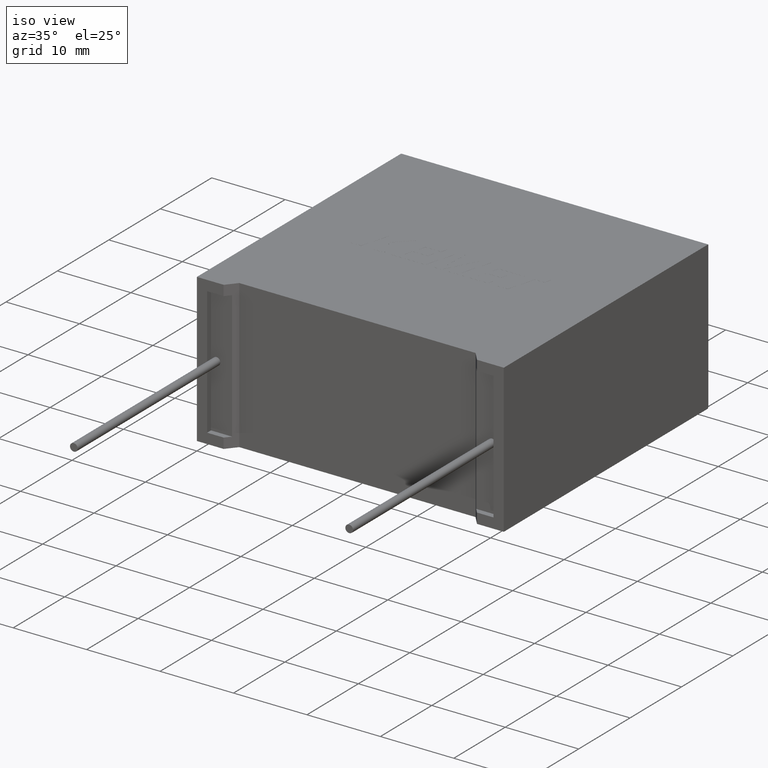
[diagram: clean part render]
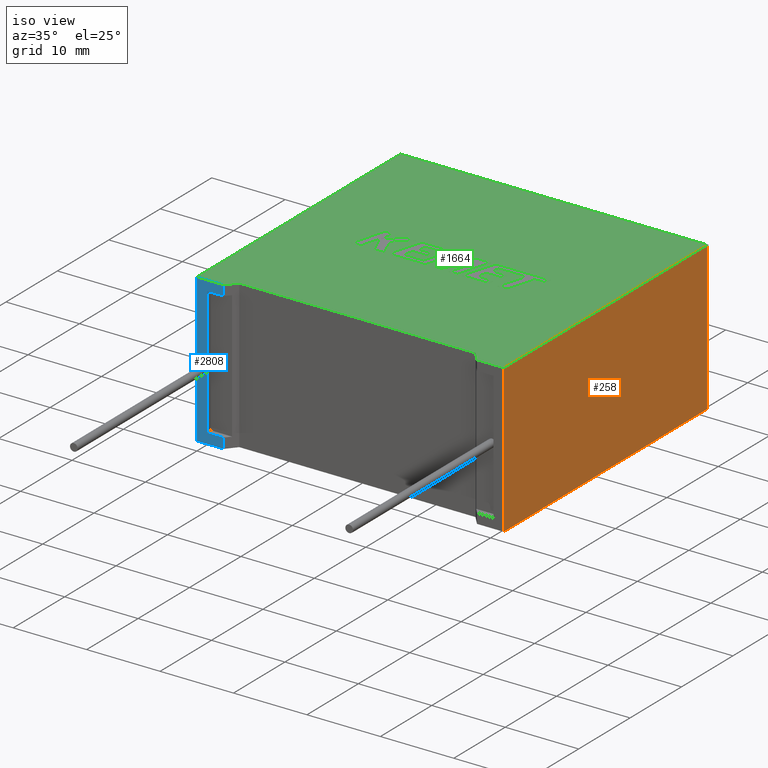
[diagram: same view with three faces highlighted in distinct colors, each labeled with its STEP entity id]
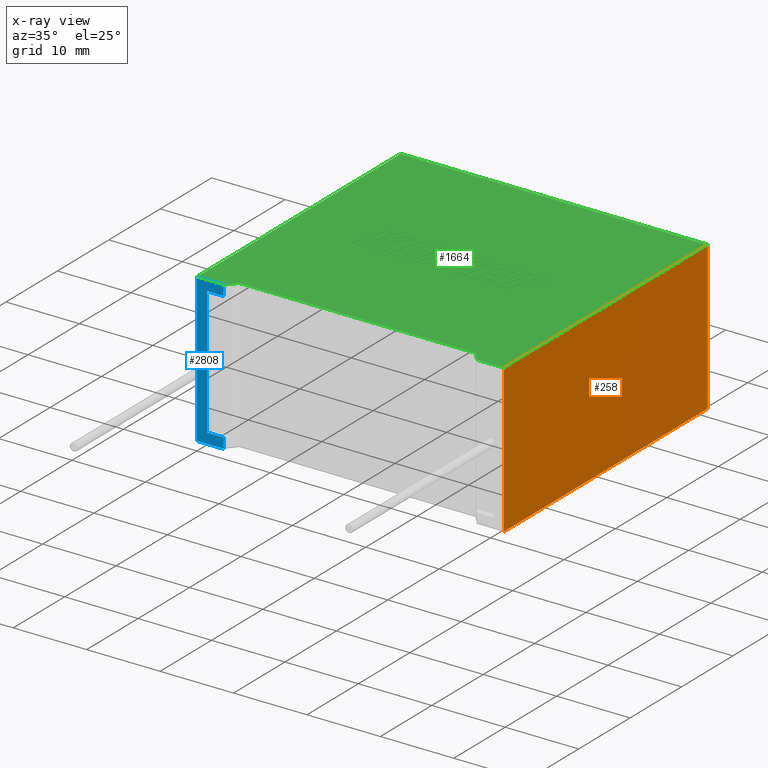
[diagram: x-ray of the same camera — body ghosted, the three highlighted faces saturated]
A machine part, iso view with three faces highlighted in distinct colors.
The next image is the same camera in x-ray (body ghosted, the three faces saturated) — at least one of them is partly hidden behind the body in this view.
Their STEP definitions:

[orange] entity #258 — the highlighted planar face has unit normal (-1, 0, 0).
#163 = DIRECTION ( 'NONE',  ( -0.000000000000000000, -0.000000000000000000, 1.000000000000000000 ) ) ;
#169 = DIRECTION ( 'NONE',  ( 0.000000000000000000, 0.000000000000000000, 1.000000000000000000 ) ) ;
#218 = CARTESIAN_POINT ( 'NONE',  ( 41.79999999999999716, 0.000000000000000000, 20.19999999999999929 ) ) ;
#258 = ADVANCED_FACE ( 'NONE', ( #2638 ), #1393, .F. ) ;
#263 = EDGE_CURVE ( 'NONE', #1248, #1397, #2512, .T. ) ;
#386 = ORIENTED_EDGE ( 'NONE', *, *, #1179, .T. ) ;
#606 = VERTEX_POINT ( 'NONE', #2443 ) ;
#708 = EDGE_LOOP ( 'NONE', ( #386, #1939, #1857, #1144 ) ) ;
#742 = DIRECTION ( 'NONE',  ( 0.000000000000000000, 1.000000000000000000, 0.000000000000000000 ) ) ;
#807 = AXIS2_PLACEMENT_3D ( 'NONE', #218, #2710, #169 ) ;
#1021 = EDGE_CURVE ( 'NONE', #1652, #606, #1570, .T. ) ;
#1144 = ORIENTED_EDGE ( 'NONE', *, *, #263, .T. ) ;
#1179 = EDGE_CURVE ( 'NONE', #1397, #1652, #1885, .T. ) ;
#1187 = CARTESIAN_POINT ( 'NONE',  ( 41.79999999999999716, 0.000000000000000000, 0.000000000000000000 ) ) ;
#1248 = VERTEX_POINT ( 'NONE', #2425 ) ;
#1362 = CARTESIAN_POINT ( 'NONE',  ( 41.79999999999999716, 0.000000000000000000, 20.19999999999999929 ) ) ;
#1393 = PLANE ( 'NONE',  #807 ) ;
#1397 = VERTEX_POINT ( 'NONE', #2505 ) ;
#1570 = LINE ( 'NONE', #2261, #2769 ) ;
#1652 = VERTEX_POINT ( 'NONE', #2198 ) ;
#1770 = DIRECTION ( 'NONE',  ( -0.000000000000000000, -0.000000000000000000, -1.000000000000000000 ) ) ;
#1857 = ORIENTED_EDGE ( 'NONE', *, *, #2591, .F. ) ;
#1885 = LINE ( 'NONE', #1187, #2869 ) ;
#1939 = ORIENTED_EDGE ( 'NONE', *, *, #1021, .T. ) ;
#2045 = LINE ( 'NONE', #2516, #2931 ) ;
#2198 = CARTESIAN_POINT ( 'NONE',  ( 41.79999999999999716, 39.60000000000000142, 0.000000000000000000 ) ) ;
#2261 = CARTESIAN_POINT ( 'NONE',  ( 41.79999999999999716, 39.60000000000000142, 20.19999999999999929 ) ) ;
#2425 = CARTESIAN_POINT ( 'NONE',  ( 41.79999999999999716, 0.000000000000000000, 20.19999999999999929 ) ) ;
#2443 = CARTESIAN_POINT ( 'NONE',  ( 41.79999999999999716, 39.60000000000000142, 20.19999999999999929 ) ) ;
#2462 = VECTOR ( 'NONE', #1770, 1000.000000000000000 ) ;
#2505 = CARTESIAN_POINT ( 'NONE',  ( 41.79999999999999716, 0.000000000000000000, 0.000000000000000000 ) ) ;
#2512 = LINE ( 'NONE', #1362, #2462 ) ;
#2516 = CARTESIAN_POINT ( 'NONE',  ( 41.79999999999999716, 0.000000000000000000, 20.19999999999999929 ) ) ;
#2591 = EDGE_CURVE ( 'NONE', #1248, #606, #2045, .T. ) ;
#2638 = FACE_OUTER_BOUND ( 'NONE', #708, .T. ) ;
#2710 = DIRECTION ( 'NONE',  ( -1.000000000000000000, 0.000000000000000000, 0.000000000000000000 ) ) ;
#2713 = DIRECTION ( 'NONE',  ( 0.000000000000000000, 1.000000000000000000, 0.000000000000000000 ) ) ;
#2769 = VECTOR ( 'NONE', #163, 1000.000000000000000 ) ;
#2869 = VECTOR ( 'NONE', #742, 1000.000000000000000 ) ;
#2931 = VECTOR ( 'NONE', #2713, 1000.000000000000000 ) ;

[blue] entity #2808 — the highlighted planar face has unit normal (0, 1, 0).
#30 = ORIENTED_EDGE ( 'NONE', *, *, #2362, .T. ) ;
#69 = CARTESIAN_POINT ( 'NONE',  ( 3.649999999999999467, 2.234980408443919708E-16, 0.000000000000000000 ) ) ;
#89 = VERTEX_POINT ( 'NONE', #1995 ) ;
#183 = CARTESIAN_POINT ( 'NONE',  ( 3.649999999999999467, 2.234980408443919708E-16, 0.000000000000000000 ) ) ;
#199 = CARTESIAN_POINT ( 'NONE',  ( 0.000000000000000000, 0.000000000000000000, 20.19999999999999929 ) ) ;
#219 = CARTESIAN_POINT ( 'NONE',  ( 3.649999999999999467, 2.234980408443919708E-16, 0.000000000000000000 ) ) ;
#353 = EDGE_CURVE ( 'NONE', #2781, #1277, #1546, .T. ) ;
#456 = CARTESIAN_POINT ( 'NONE',  ( 1.393333194000000219, 0.000000000000000000, 18.80666680599999552 ) ) ;
#528 = DIRECTION ( 'NONE',  ( 1.000000000000000000, 0.000000000000000000, 0.000000000000000000 ) ) ;
#530 = PLANE ( 'NONE',  #691 ) ;
#558 = CARTESIAN_POINT ( 'NONE',  ( 0.000000000000000000, 0.000000000000000000, 20.19999999999999929 ) ) ;
#577 = EDGE_LOOP ( 'NONE', ( #2072, #30, #673, #2560, #2363, #2617, #2720, #1932 ) ) ;
#602 = EDGE_CURVE ( 'NONE', #2153, #1043, #1123, .T. ) ;
#673 = ORIENTED_EDGE ( 'NONE', *, *, #2193, .F. ) ;
#691 = AXIS2_PLACEMENT_3D ( 'NONE', #558, #775, #1525 ) ;
#730 = CARTESIAN_POINT ( 'NONE',  ( 1.393333193999999997, 0.000000000000000000, 1.393333193999999997 ) ) ;
#775 = DIRECTION ( 'NONE',  ( 0.000000000000000000, 1.000000000000000000, 0.000000000000000000 ) ) ;
#840 = EDGE_CURVE ( 'NONE', #89, #2439, #2375, .T. ) ;
#873 = DIRECTION ( 'NONE',  ( -0.000000000000000000, -0.000000000000000000, 1.000000000000000000 ) ) ;
#884 = LINE ( 'NONE', #199, #2324 ) ;
#914 = DIRECTION ( 'NONE',  ( 1.000000000000000000, 0.000000000000000000, 0.000000000000000000 ) ) ;
#1023 = DIRECTION ( 'NONE',  ( -0.000000000000000000, -0.000000000000000000, 1.000000000000000000 ) ) ;
#1043 = VERTEX_POINT ( 'NONE', #183 ) ;
#1054 = EDGE_CURVE ( 'NONE', #89, #2153, #884, .T. ) ;
#1123 = LINE ( 'NONE', #2039, #2613 ) ;
#1154 = CARTESIAN_POINT ( 'NONE',  ( 40.40666680599999694, 0.000000000000000000, 18.80666680599999907 ) ) ;
#1168 = CARTESIAN_POINT ( 'NONE',  ( 0.000000000000000000, 0.000000000000000000, 0.000000000000000000 ) ) ;
#1274 = CARTESIAN_POINT ( 'NONE',  ( 3.649999999999999467, 2.234980408443919708E-16, 18.80666680599999552 ) ) ;
#1277 = VERTEX_POINT ( 'NONE', #2187 ) ;
#1311 = VECTOR ( 'NONE', #528, 1000.000000000000000 ) ;
#1466 = VECTOR ( 'NONE', #873, 1000.000000000000000 ) ;
#1516 = CARTESIAN_POINT ( 'NONE',  ( 3.649999999999999467, 2.234980408443919708E-16, 20.19999999999999929 ) ) ;
#1525 = DIRECTION ( 'NONE',  ( 0.000000000000000000, -0.000000000000000000, 1.000000000000000000 ) ) ;
#1546 = LINE ( 'NONE', #3029, #2409 ) ;
#1608 = LINE ( 'NONE', #1154, #1661 ) ;
#1642 = VECTOR ( 'NONE', #1023, 1000.000000000000000 ) ;
#1656 = DIRECTION ( 'NONE',  ( 1.000000000000000000, 0.000000000000000000, 0.000000000000000000 ) ) ;
#1661 = VECTOR ( 'NONE', #2069, 1000.000000000000000 ) ;
#1932 = ORIENTED_EDGE ( 'NONE', *, *, #1054, .T. ) ;
#1941 = VERTEX_POINT ( 'NONE', #1944 ) ;
#1944 = CARTESIAN_POINT ( 'NONE',  ( 3.649999999999999467, 2.234980408443919708E-16, 1.393333193999999997 ) ) ;
#1995 = CARTESIAN_POINT ( 'NONE',  ( 0.000000000000000000, 0.000000000000000000, 20.19999999999999929 ) ) ;
#2039 = CARTESIAN_POINT ( 'NONE',  ( 0.000000000000000000, 0.000000000000000000, 0.000000000000000000 ) ) ;
#2069 = DIRECTION ( 'NONE',  ( -1.000000000000000000, 0.000000000000000000, -8.892977427815748891E-17 ) ) ;
#2072 = ORIENTED_EDGE ( 'NONE', *, *, #602, .T. ) ;
#2094 = EDGE_CURVE ( 'NONE', #2786, #2439, #2177, .T. ) ;
#2115 = DIRECTION ( 'NONE',  ( -1.245255155208594419E-17, 0.000000000000000000, -1.000000000000000000 ) ) ;
#2153 = VERTEX_POINT ( 'NONE', #1168 ) ;
#2177 = LINE ( 'NONE', #69, #1642 ) ;
#2187 = CARTESIAN_POINT ( 'NONE',  ( 1.393333193999999997, 0.000000000000000000, 1.393333194000000219 ) ) ;
#2193 = EDGE_CURVE ( 'NONE', #1277, #1941, #2824, .T. ) ;
#2311 = LINE ( 'NONE', #219, #1466 ) ;
#2324 = VECTOR ( 'NONE', #3016, 1000.000000000000000 ) ;
#2362 = EDGE_CURVE ( 'NONE', #1043, #1941, #2311, .T. ) ;
#2363 = ORIENTED_EDGE ( 'NONE', *, *, #2660, .F. ) ;
#2375 = LINE ( 'NONE', #2849, #1311 ) ;
#2409 = VECTOR ( 'NONE', #2115, 1000.000000000000000 ) ;
#2439 = VERTEX_POINT ( 'NONE', #1516 ) ;
#2560 = ORIENTED_EDGE ( 'NONE', *, *, #353, .F. ) ;
#2613 = VECTOR ( 'NONE', #914, 1000.000000000000000 ) ;
#2617 = ORIENTED_EDGE ( 'NONE', *, *, #2094, .T. ) ;
#2660 = EDGE_CURVE ( 'NONE', #2786, #2781, #1608, .T. ) ;
#2720 = ORIENTED_EDGE ( 'NONE', *, *, #840, .F. ) ;
#2781 = VERTEX_POINT ( 'NONE', #456 ) ;
#2786 = VERTEX_POINT ( 'NONE', #1274 ) ;
#2808 = ADVANCED_FACE ( 'NONE', ( #2872 ), #530, .F. ) ;
#2824 = LINE ( 'NONE', #730, #2882 ) ;
#2849 = CARTESIAN_POINT ( 'NONE',  ( 0.000000000000000000, 0.000000000000000000, 20.19999999999999929 ) ) ;
#2872 = FACE_OUTER_BOUND ( 'NONE', #577, .T. ) ;
#2882 = VECTOR ( 'NONE', #1656, 1000.000000000000000 ) ;
#3016 = DIRECTION ( 'NONE',  ( -0.000000000000000000, -0.000000000000000000, -1.000000000000000000 ) ) ;
#3029 = CARTESIAN_POINT ( 'NONE',  ( 1.393333194000000219, 0.000000000000000000, 18.80666680599999552 ) ) ;

[green] entity #1664 — the highlighted planar face has unit normal (0, 0, -1).
#18 = VERTEX_POINT ( 'NONE', #2807 ) ;
#45 = ORIENTED_EDGE ( 'NONE', *, *, #718, .F. ) ;
#57 = ORIENTED_EDGE ( 'NONE', *, *, #741, .T. ) ;
#58 = FACE_OUTER_BOUND ( 'NONE', #979, .T. ) ;
#89 = VERTEX_POINT ( 'NONE', #1995 ) ;
#114 = VECTOR ( 'NONE', #2809, 1000.000000000000000 ) ;
#321 = VECTOR ( 'NONE', #1177, 1000.000000000000000 ) ;
#344 = DIRECTION ( 'NONE',  ( -1.000000000000000000, -1.212964107801604344E-16, 0.000000000000000000 ) ) ;
#455 = ORIENTED_EDGE ( 'NONE', *, *, #840, .T. ) ;
#467 = CARTESIAN_POINT ( 'NONE',  ( 0.000000000000000000, 39.60000000000000142, 20.19999999999999929 ) ) ;
#487 = VERTEX_POINT ( 'NONE', #2846 ) ;
#498 = DIRECTION ( 'NONE',  ( 0.6429847578486875825, -0.7658789729286635817, -0.000000000000000000 ) ) ;
#512 = CARTESIAN_POINT ( 'NONE',  ( 0.000000000000000000, 39.60000000000000142, 20.19999999999999929 ) ) ;
#528 = DIRECTION ( 'NONE',  ( 1.000000000000000000, 0.000000000000000000, 0.000000000000000000 ) ) ;
#606 = VERTEX_POINT ( 'NONE', #2443 ) ;
#626 = EDGE_CURVE ( 'NONE', #487, #1765, #2209, .T. ) ;
#638 = EDGE_CURVE ( 'NONE', #18, #1248, #2269, .T. ) ;
#718 = EDGE_CURVE ( 'NONE', #1765, #2439, #1004, .T. ) ;
#724 = VECTOR ( 'NONE', #1448, 1000.000000000000000 ) ;
#728 = VERTEX_POINT ( 'NONE', #467 ) ;
#732 = CARTESIAN_POINT ( 'NONE',  ( 0.000000000000000000, 0.000000000000000000, 20.19999999999999929 ) ) ;
#741 = EDGE_CURVE ( 'NONE', #728, #89, #2601, .T. ) ;
#797 = EDGE_CURVE ( 'NONE', #487, #18, #1659, .T. ) ;
#831 = EDGE_CURVE ( 'NONE', #606, #728, #2796, .T. ) ;
#840 = EDGE_CURVE ( 'NONE', #89, #2439, #2375, .T. ) ;
#979 = EDGE_LOOP ( 'NONE', ( #1775, #1413, #57, #455, #45, #2671, #2874, #3031 ) ) ;
#1004 = LINE ( 'NONE', #1904, #1453 ) ;
#1165 = VECTOR ( 'NONE', #344, 1000.000000000000000 ) ;
#1177 = DIRECTION ( 'NONE',  ( 1.000000000000000000, 0.000000000000000000, 0.000000000000000000 ) ) ;
#1248 = VERTEX_POINT ( 'NONE', #2425 ) ;
#1311 = VECTOR ( 'NONE', #528, 1000.000000000000000 ) ;
#1413 = ORIENTED_EDGE ( 'NONE', *, *, #831, .T. ) ;
#1448 = DIRECTION ( 'NONE',  ( -1.000000000000000000, 0.000000000000000000, 0.000000000000000000 ) ) ;
#1453 = VECTOR ( 'NONE', #1875, 999.9999999999998863 ) ;
#1516 = CARTESIAN_POINT ( 'NONE',  ( 3.649999999999999467, 2.234980408443919708E-16, 20.19999999999999929 ) ) ;
#1659 = LINE ( 'NONE', #2587, #2468 ) ;
#1664 = ADVANCED_FACE ( 'NONE', ( #58 ), #2609, .F. ) ;
#1765 = VERTEX_POINT ( 'NONE', #1891 ) ;
#1775 = ORIENTED_EDGE ( 'NONE', *, *, #2591, .T. ) ;
#1875 = DIRECTION ( 'NONE',  ( -0.6429847578486875825, -0.7658789729286635817, -0.000000000000000000 ) ) ;
#1891 = CARTESIAN_POINT ( 'NONE',  ( 4.810785999999999341, 1.382647999999999211, 20.19999999999999929 ) ) ;
#1904 = CARTESIAN_POINT ( 'NONE',  ( 3.649999999999999467, 2.234980408443919708E-16, 20.19999999999999929 ) ) ;
#1993 = DIRECTION ( 'NONE',  ( -1.000000000000000000, 0.000000000000000000, -0.000000000000000000 ) ) ;
#1995 = CARTESIAN_POINT ( 'NONE',  ( 0.000000000000000000, 0.000000000000000000, 20.19999999999999929 ) ) ;
#2027 = DIRECTION ( 'NONE',  ( 0.000000000000000000, 0.000000000000000000, -1.000000000000000000 ) ) ;
#2045 = LINE ( 'NONE', #2516, #2931 ) ;
#2209 = LINE ( 'NONE', #2438, #1165 ) ;
#2269 = LINE ( 'NONE', #2531, #321 ) ;
#2318 = AXIS2_PLACEMENT_3D ( 'NONE', #2738, #2027, #1993 ) ;
#2375 = LINE ( 'NONE', #2849, #1311 ) ;
#2425 = CARTESIAN_POINT ( 'NONE',  ( 41.79999999999999716, 0.000000000000000000, 20.19999999999999929 ) ) ;
#2438 = CARTESIAN_POINT ( 'NONE',  ( 20.89999999999999858, 1.382648000000000987, 20.19999999999999929 ) ) ;
#2439 = VERTEX_POINT ( 'NONE', #1516 ) ;
#2443 = CARTESIAN_POINT ( 'NONE',  ( 41.79999999999999716, 39.60000000000000142, 20.19999999999999929 ) ) ;
#2468 = VECTOR ( 'NONE', #498, 999.9999999999998863 ) ;
#2516 = CARTESIAN_POINT ( 'NONE',  ( 41.79999999999999716, 0.000000000000000000, 20.19999999999999929 ) ) ;
#2531 = CARTESIAN_POINT ( 'NONE',  ( 0.000000000000000000, 0.000000000000000000, 20.19999999999999929 ) ) ;
#2587 = CARTESIAN_POINT ( 'NONE',  ( 38.14999999999999858, 2.234980408443919708E-16, 20.19999999999999929 ) ) ;
#2591 = EDGE_CURVE ( 'NONE', #1248, #606, #2045, .T. ) ;
#2601 = LINE ( 'NONE', #732, #114 ) ;
#2609 = PLANE ( 'NONE',  #2318 ) ;
#2671 = ORIENTED_EDGE ( 'NONE', *, *, #626, .F. ) ;
#2713 = DIRECTION ( 'NONE',  ( 0.000000000000000000, 1.000000000000000000, 0.000000000000000000 ) ) ;
#2738 = CARTESIAN_POINT ( 'NONE',  ( 0.000000000000000000, 0.000000000000000000, 20.19999999999999929 ) ) ;
#2796 = LINE ( 'NONE', #512, #724 ) ;
#2807 = CARTESIAN_POINT ( 'NONE',  ( 38.14999999999999858, 2.234980408443919708E-16, 20.19999999999999929 ) ) ;
#2809 = DIRECTION ( 'NONE',  ( -0.000000000000000000, -1.000000000000000000, -0.000000000000000000 ) ) ;
#2846 = CARTESIAN_POINT ( 'NONE',  ( 36.98921399999999693, 1.382647999999999211, 20.19999999999999929 ) ) ;
#2849 = CARTESIAN_POINT ( 'NONE',  ( 0.000000000000000000, 0.000000000000000000, 20.19999999999999929 ) ) ;
#2874 = ORIENTED_EDGE ( 'NONE', *, *, #797, .T. ) ;
#2931 = VECTOR ( 'NONE', #2713, 1000.000000000000000 ) ;
#3031 = ORIENTED_EDGE ( 'NONE', *, *, #638, .T. ) ;